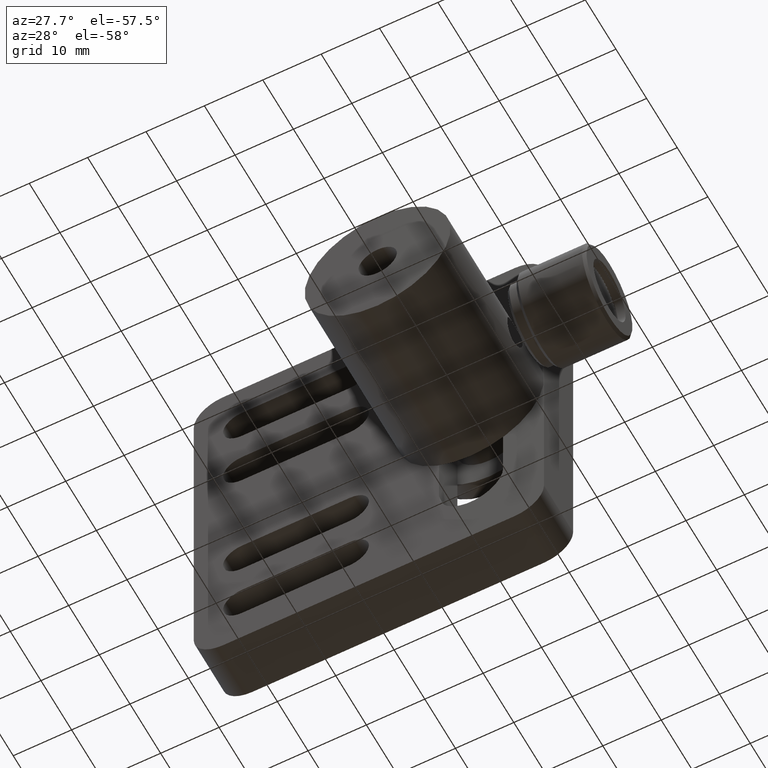
[diagram: clean part render]
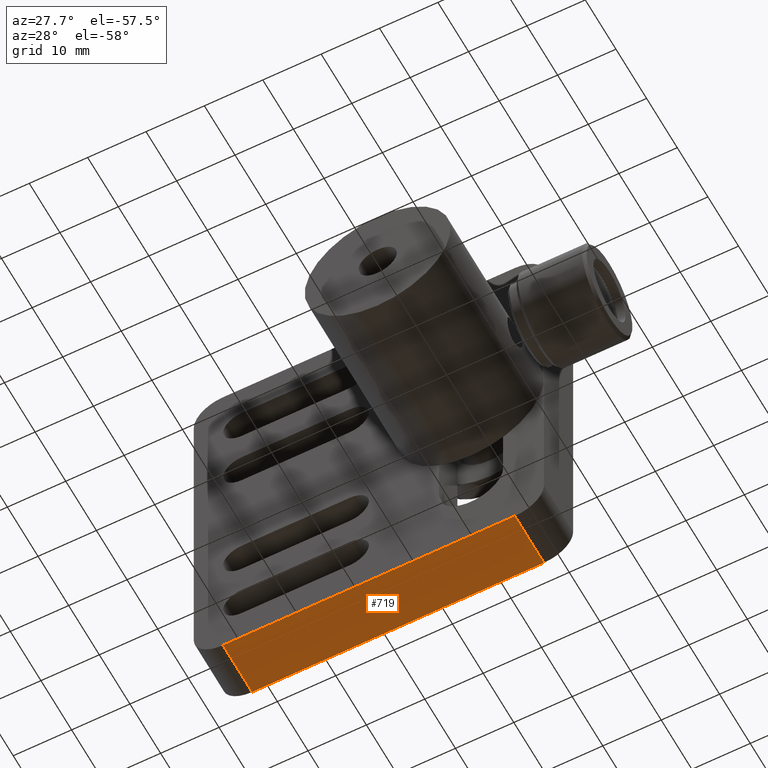
[diagram: same view with one face highlighted and labeled with its STEP entity id]
A machine part, auxiliary view. The second image highlights one B-rep face of the part: STEP entity #719.
In plain terms, the highlighted planar face has unit normal (-0, 0, 1).
Its self-contained STEP definition (entity closure, byte-faithful):
#31 = PLANE ( 'NONE',  #590 ) ;
#173 = LINE ( 'NONE', #480, #3582 ) ;
#310 = LINE ( 'NONE', #462, #1183 ) ;
#393 = CARTESIAN_POINT ( 'NONE',  ( -69.94529086523762400, -11.86148955495005100, -35.00000000000000700 ) ) ;
#425 = EDGE_CURVE ( 'NONE', #4270, #3753, #173, .T. ) ;
#462 = CARTESIAN_POINT ( 'NONE',  ( 26.90735694822887700, -11.86148955495005100, -35.00000000000000700 ) ) ;
#480 = CARTESIAN_POINT ( 'NONE',  ( -23.09264305177117300, -11.86148955495005100, -35.00000000000000700 ) ) ;
#575 = CARTESIAN_POINT ( 'NONE',  ( -69.94529086523762400, -2.361489554950050100, -35.00000000000000700 ) ) ;
#590 = AXIS2_PLACEMENT_3D ( 'NONE', #393, #2147, #1469 ) ;
#687 = CARTESIAN_POINT ( 'NONE',  ( -23.09264305177117300, -11.86148955495005100, -35.00000000000000700 ) ) ;
#719 = ADVANCED_FACE ( 'NONE', ( #3903 ), #31, .F. ) ;
#795 = DIRECTION ( 'NONE',  ( 0.0000000000000000000, 1.000000000000000000, 0.0000000000000000000 ) ) ;
#842 = CARTESIAN_POINT ( 'NONE',  ( 26.90735694822887700, -2.361489554950050100, -35.00000000000000700 ) ) ;
#865 = VERTEX_POINT ( 'NONE', #842 ) ;
#1098 = ORIENTED_EDGE ( 'NONE', *, *, #1969, .T. ) ;
#1110 = CARTESIAN_POINT ( 'NONE',  ( -23.09264305177117300, -2.361489554950050100, -35.00000000000000700 ) ) ;
#1183 = VECTOR ( 'NONE', #2778, 1000.000000000000000 ) ;
#1298 = VECTOR ( 'NONE', #3936, 1000.000000000000000 ) ;
#1469 = DIRECTION ( 'NONE',  ( 1.000000000000000000, 0.0000000000000000000, 0.0000000000000000000 ) ) ;
#1488 = LINE ( 'NONE', #3904, #2637 ) ;
#1969 = EDGE_CURVE ( 'NONE', #3753, #865, #3907, .T. ) ;
#2147 = DIRECTION ( 'NONE',  ( -0.0000000000000000000, 0.0000000000000000000, 1.000000000000000000 ) ) ;
#2291 = ORIENTED_EDGE ( 'NONE', *, *, #425, .T. ) ;
#2427 = ORIENTED_EDGE ( 'NONE', *, *, #2861, .F. ) ;
#2637 = VECTOR ( 'NONE', #3920, 1000.000000000000000 ) ;
#2714 = CARTESIAN_POINT ( 'NONE',  ( 26.90735694822887700, -11.86148955495005100, -35.00000000000000700 ) ) ;
#2778 = DIRECTION ( 'NONE',  ( 0.0000000000000000000, 1.000000000000000000, 0.0000000000000000000 ) ) ;
#2861 = EDGE_CURVE ( 'NONE', #4270, #4070, #1488, .T. ) ;
#3123 = ORIENTED_EDGE ( 'NONE', *, *, #4147, .F. ) ;
#3234 = EDGE_LOOP ( 'NONE', ( #1098, #3123, #2427, #2291 ) ) ;
#3582 = VECTOR ( 'NONE', #795, 1000.000000000000000 ) ;
#3753 = VERTEX_POINT ( 'NONE', #1110 ) ;
#3903 = FACE_OUTER_BOUND ( 'NONE', #3234, .T. ) ;
#3904 = CARTESIAN_POINT ( 'NONE',  ( -69.94529086523762400, -11.86148955495005100, -35.00000000000000700 ) ) ;
#3907 = LINE ( 'NONE', #575, #1298 ) ;
#3920 = DIRECTION ( 'NONE',  ( 1.000000000000000000, -0.0000000000000000000, 0.0000000000000000000 ) ) ;
#3936 = DIRECTION ( 'NONE',  ( 1.000000000000000000, -0.0000000000000000000, 0.0000000000000000000 ) ) ;
#4070 = VERTEX_POINT ( 'NONE', #2714 ) ;
#4147 = EDGE_CURVE ( 'NONE', #4070, #865, #310, .T. ) ;
#4270 = VERTEX_POINT ( 'NONE', #687 ) ;